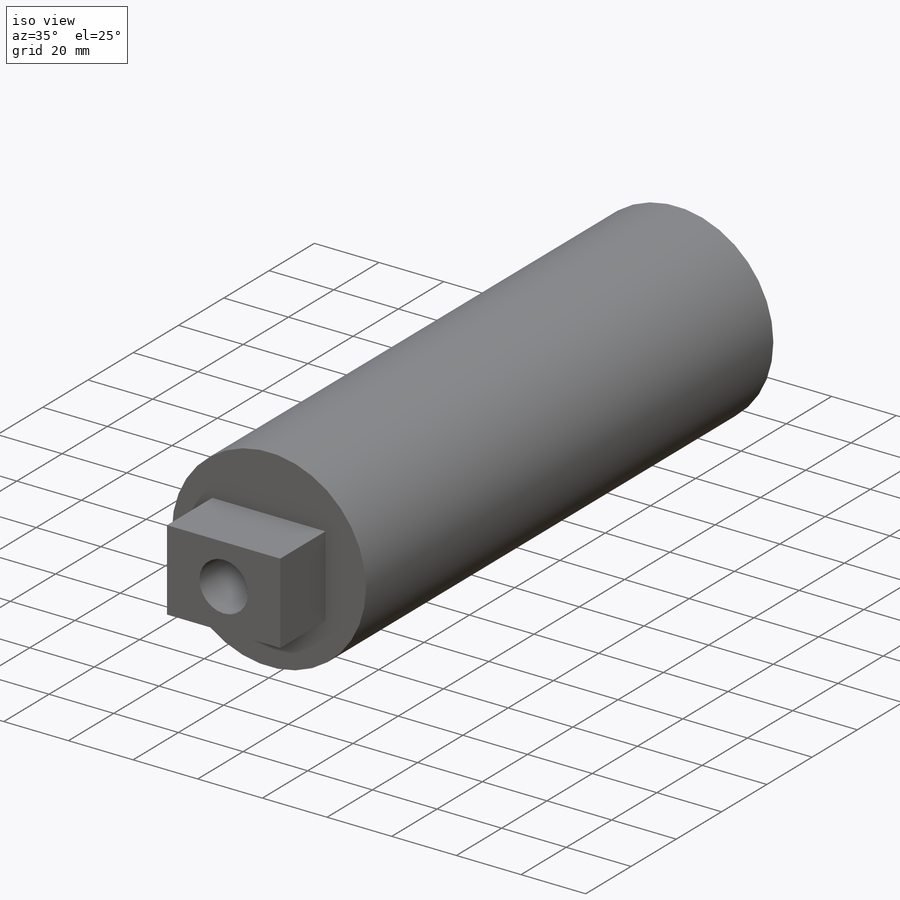
[diagram: iso view]
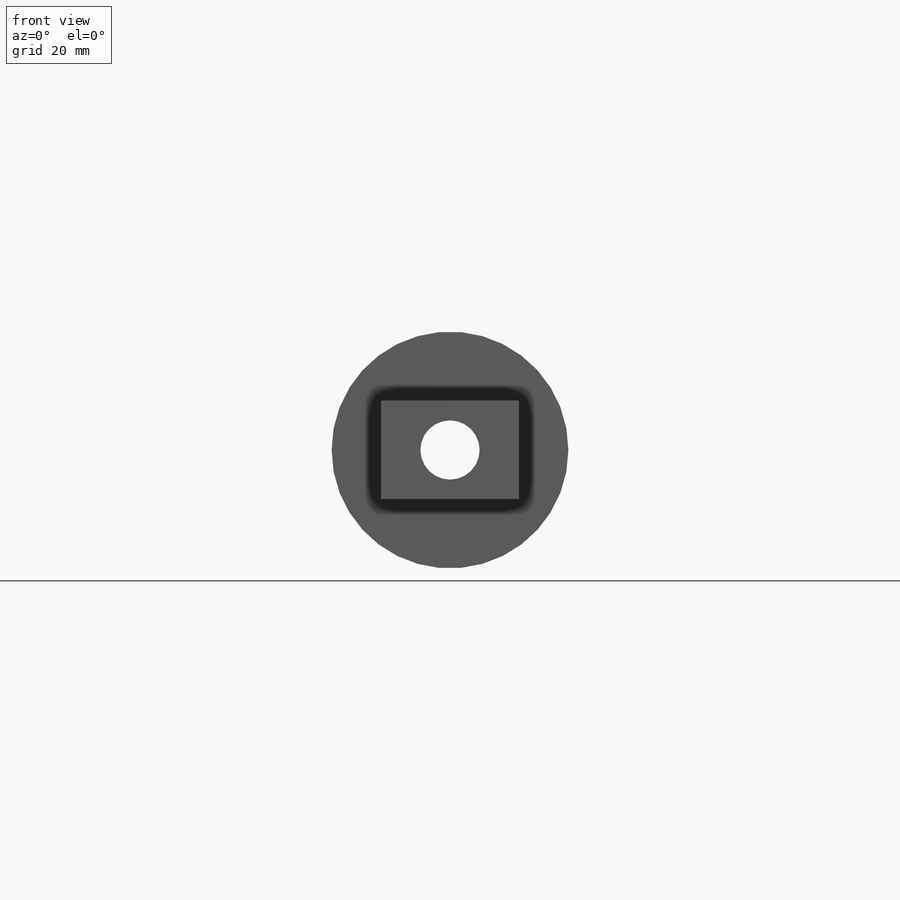
[diagram: front view]
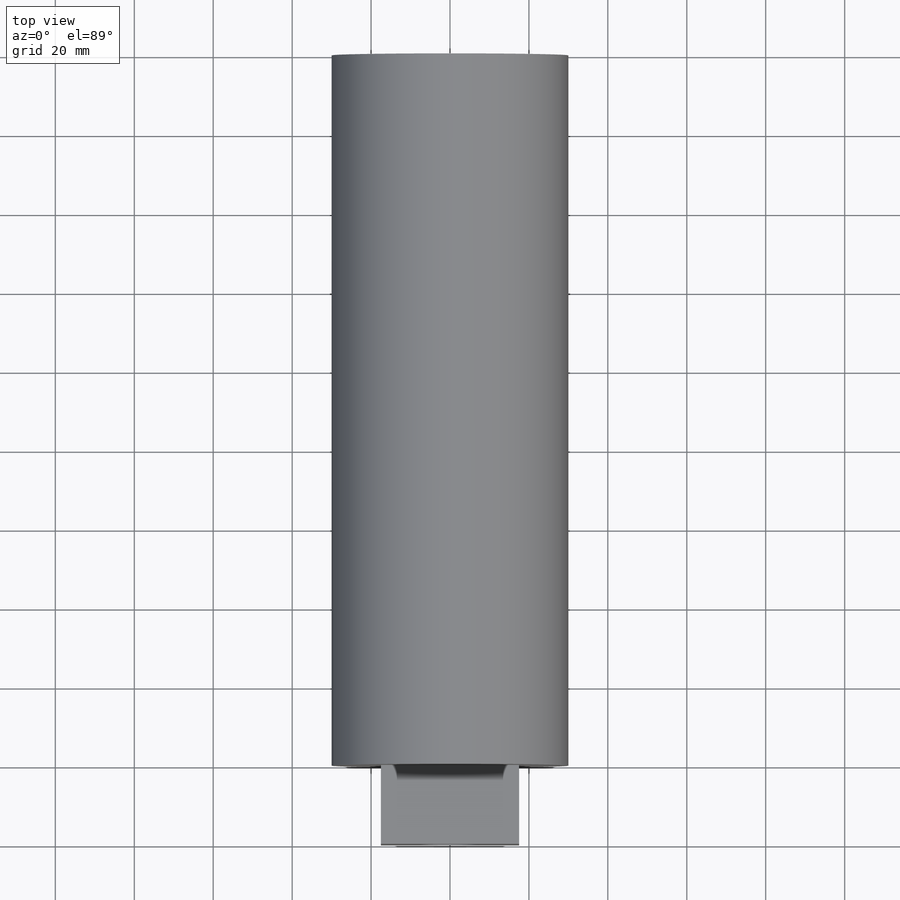
[diagram: top view]
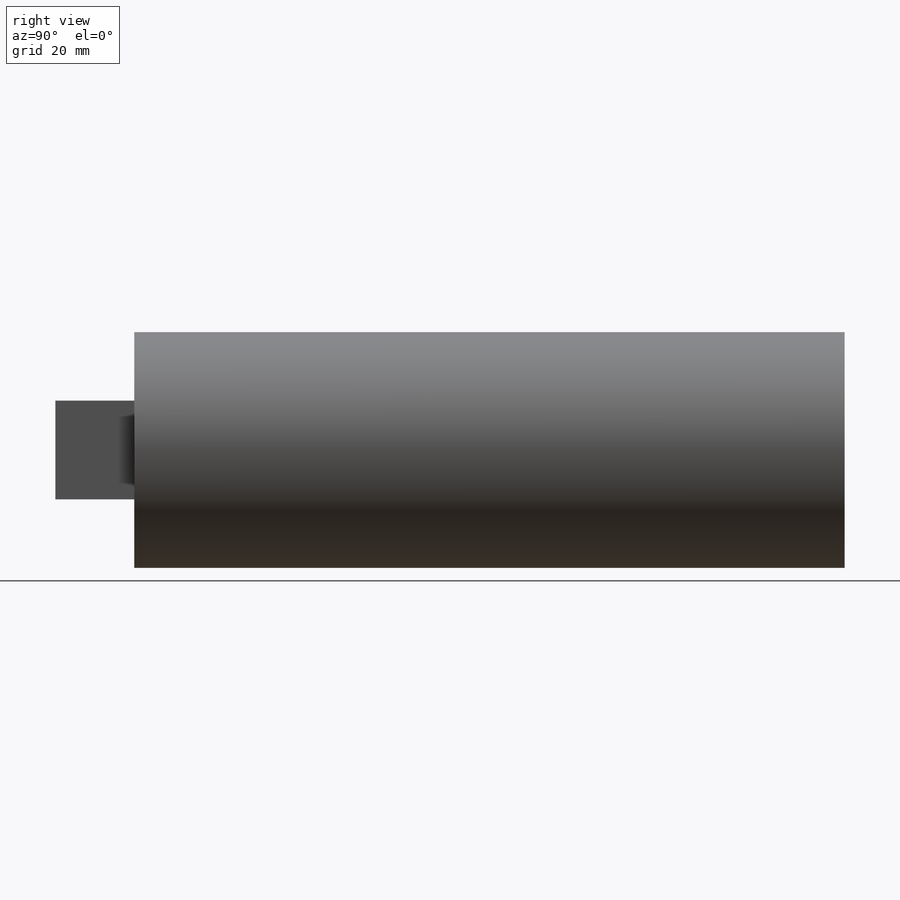
[diagram: right view]
SOLIDWORKS PART (.sldprt)
format: sldprt  version: not decoded by parser v0  size: 198,144 bytes
history: native  units: mm
features: sketch x3, extrude x2, material x1, cut_extrude x1, shell x1 + 1 further entry (+11 scaffold rows collapsed)
feature tree (20):
  scaffold x11  (default folders/planes/origin — collapsed)
  material  "Material <not specified>"
  "Annotations"  RD1=15mm RD2=25mm RD3=35mm RD4=60mm RD5=20mm RD6=180mm
  sketch  "Sketch9"  dims[D1=~32.356014mm]
  extrude  "Boss-Extrude11"  Depth=180mm
  sketch  "Sketch10"  dims[D1=25.0mm]
  extrude  "Boss-Extrude12"  Depth=20mm
  sketch  "Sketch11"  dims[D1=~6.305151mm]
  cut_extrude  "Cut-Extrude2"  [1 undecoded]
  shell  "Shell1"  Thickness=1mm
decode coverage: 6 of 7 modeling features carry decoded parameters; 1 rows unclassified (native names shown)
note: ~ marks probable driven/reference dimensions
note: 1 parameter value undecoded
note: suppression state not decoded; provenance and decode notes live in map.json
